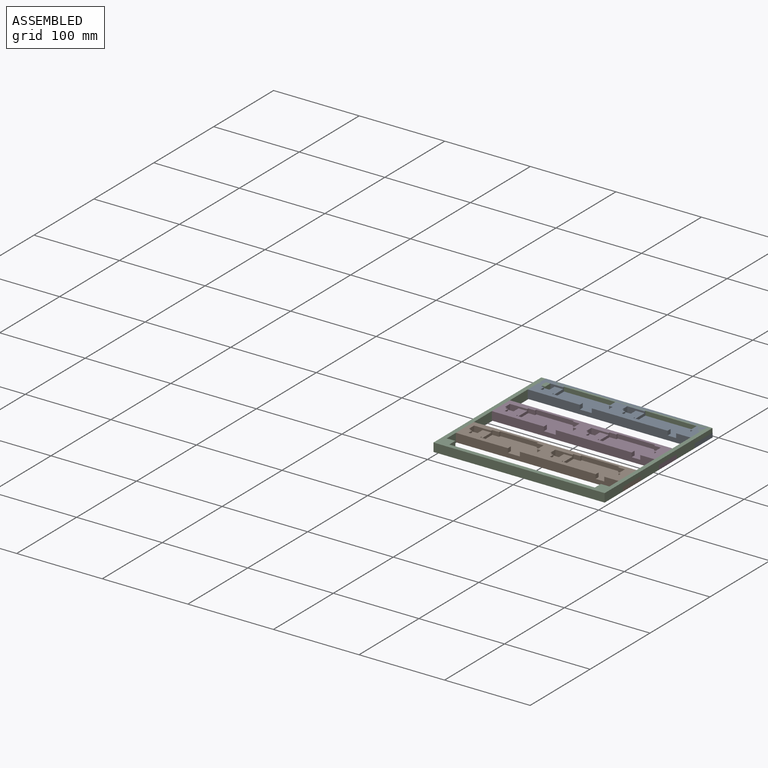
[diagram: assembled view]
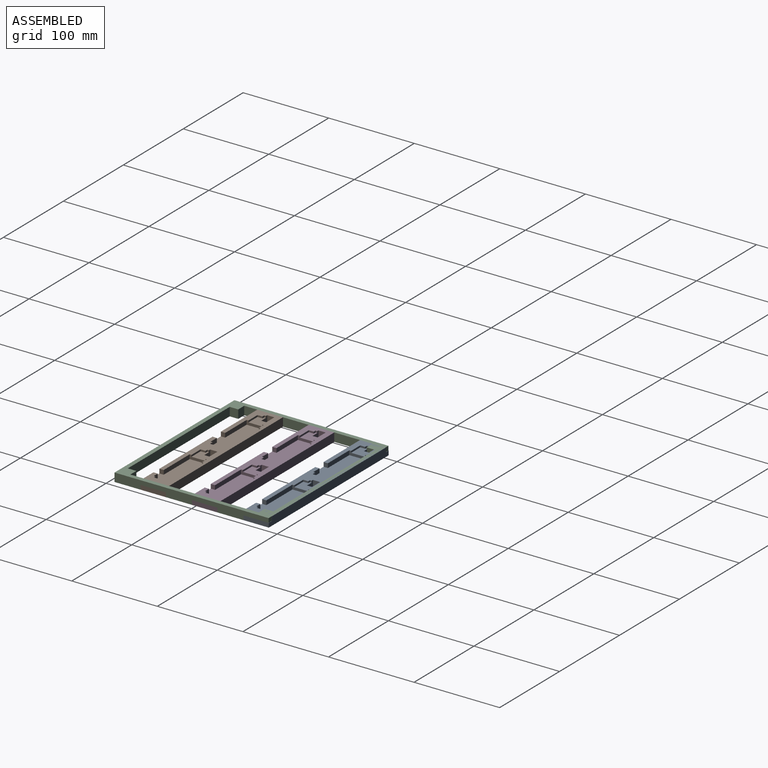
[diagram: assembled view, second angle]
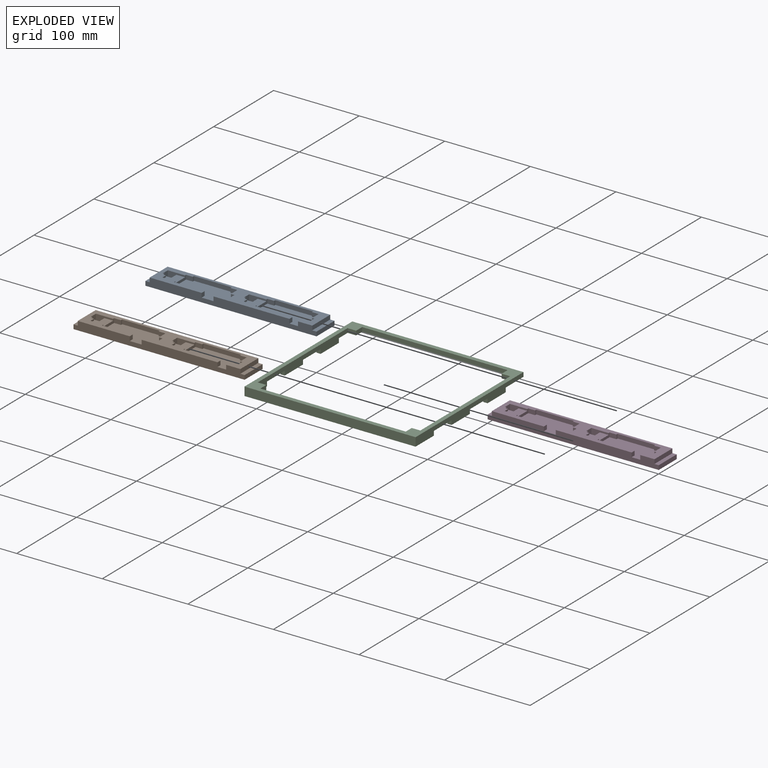
[diagram: exploded view]
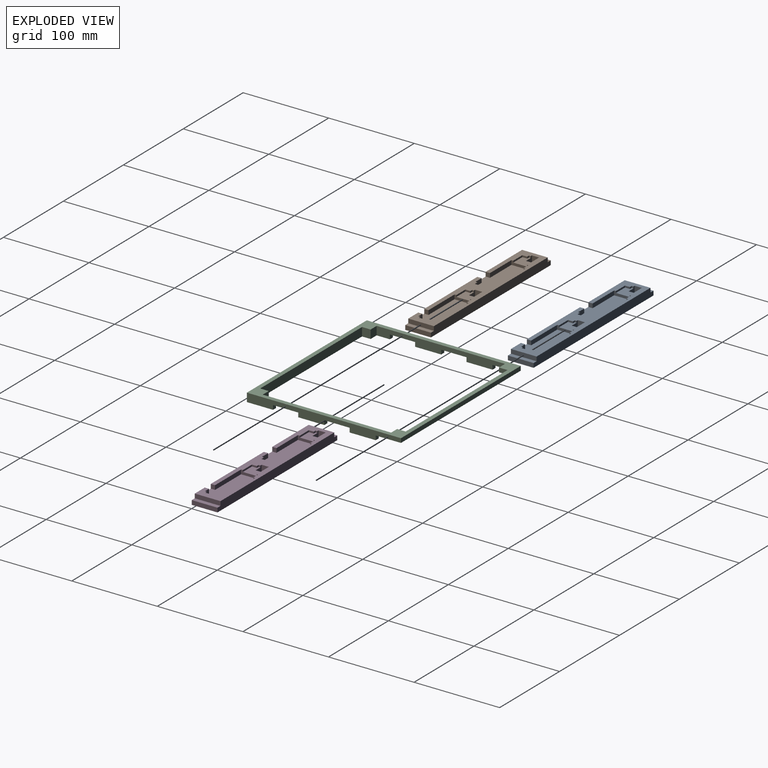
[diagram: exploded view, second angle]
ASSEMBLY  parts=4 mates=3
PART A: 60 faces, bbox 200x30x10 mm
  f0: plane 200x10mm, normal (0,-1,0), area 1830.4mm2, adj f1,f7,f8,f9,f44,f45,f52,f53
  f1: plane 190x30mm, normal (0,0,1), area 2371.7mm2, adj f0,f2,f3,f4,f5,f6,f12,f13
  f2: plane 200x10mm, normal (0,1,0), area 1950mm2, adj f1,f7,f44,f45,f56,f57,f58,f59
  f3: plane 35.76x5mm, normal (0,1,0), area 178.8mm2, adj f1,f8,f20,f55
  f4: plane 5x2.26mm, normal (-1,0,0), area 11.3mm2, adj f1,f8,f21,f49
  f5: plane 43.34x5mm, normal (0,1,0), area 216.7mm2, adj f1,f9,f32,f52
  f6: plane 5x2.19mm, normal (-1,0,0), area 10.9mm2, adj f1,f9,f33,f46
  f7: plane 30x5mm, normal (1,0,0), area 150mm2, adj f0,f2,f45,f59
  f8: plane 64.22x27mm, normal (0,0,1), area 1386.6mm2, adj f0,f3,f4,f12,f13,f14,f15,f20
  f9: plane 62.5x27mm, normal (0,0,1), area 1355.5mm2, adj f0,f5,f6,f24,f25,f26,f27,f32
  f10: plane 18.08x16.21mm, normal (0,0,1), area 209.5mm2, adj f28,f29,f30,f31,f32,f36,f37,f39
  f11: plane 18.08x16.21mm, normal (0,0,1), area 209.5mm2, adj f16,f17,f18,f19,f20,f40,f41,f43
  f12: plane 5x2mm, normal (-1,0,0), area 10mm2, adj f1,f8,f13,f23
  f13: plane 44x5mm, normal (0,-1,0), area 220mm2, adj f1,f8,f12,f14
  f14: plane 5x2mm, normal (1,0,0), area 10mm2, adj f1,f8,f13,f15
  f15: plane 8x5mm, normal (0,-1,0), area 40mm2, adj f1,f8,f14,f20
  f16: plane 2.06x2mm, normal (1,0,0), area 4.1mm2, adj f1,f11,f17,f41
  f17: plane 2.95x2mm, normal (0,1,0), area 5.9mm2, adj f1,f11,f16,f18
  f18: plane 5.78x2mm, normal (1,0,0), area 11.6mm2, adj f1,f11,f17,f19
  f19: plane 15.13x2mm, normal (0,1,0), area 30.3mm2, adj f1,f11,f18,f20
  f20: plane 20x5mm, normal (1,0,0), area 67.6mm2, adj f1,f3,f8,f11,f15,f19,f43
  f21: plane 10.32x5mm, normal (0,1,0), area 51.6mm2, adj f1,f4,f8,f54
  f22: plane 10.89x5mm, normal (-1,0,0), area 54.4mm2, adj f1,f8,f23,f51
  f23: plane 8x5mm, normal (0,-1,0), area 40mm2, adj f1,f8,f12,f22
  f24: plane 5x2mm, normal (-1,0,0), area 10mm2, adj f1,f9,f25,f35
  f25: plane 44x5mm, normal (0,-1,0), area 220mm2, adj f1,f9,f24,f26
  f26: plane 5x2mm, normal (1,0,0), area 10mm2, adj f1,f9,f25,f27
  f27: plane 8x5mm, normal (0,-1,0), area 40mm2, adj f1,f9,f26,f32
  f28: plane 2.06x2mm, normal (1,0,0), area 4.1mm2, adj f1,f10,f29,f37
  f29: plane 2.95x2mm, normal (0,1,0), area 5.9mm2, adj f1,f10,f28,f30
  f30: plane 5.78x2mm, normal (1,0,0), area 11.6mm2, adj f1,f10,f29,f31
  f31: plane 15.13x2mm, normal (0,1,0), area 30.3mm2, adj f1,f10,f30,f32
  f32: plane 20x5mm, normal (1,0,0), area 67.6mm2, adj f1,f5,f9,f10,f27,f31,f39
  f33: plane 6.66x5mm, normal (0,1,0), area 33.3mm2, adj f1,f6,f9,f53
  f34: plane 10.81x5mm, normal (-1,0,0), area 54.1mm2, adj f1,f9,f35,f48
  f35: plane 8x5mm, normal (0,-1,0), area 40mm2, adj f1,f9,f24,f34
  f36: plane 8.37x8mm, normal (-1,0,0), area 66.9mm2, adj f10,f37,f39,f45
  f37: plane 10x10mm, normal (0,1,0), area 84.1mm2, adj f1,f10,f28,f36,f38,f45
  f38: plane 10x8.37mm, normal (1,0,0), area 83.7mm2, adj f1,f37,f39,f45
  f39: plane 20.13x10mm, normal (0,-1,0), area 120.3mm2, adj f1,f10,f32,f36,f38,f45
  f40: plane 8.37x8mm, normal (-1,0,0), area 66.9mm2, adj f11,f41,f43,f45
  f41: plane 10x10mm, normal (0,1,0), area 84.1mm2, adj f1,f11,f16,f40,f42,f45
  f42: plane 10x8.37mm, normal (1,0,0), area 83.7mm2, adj f1,f41,f43,f45
  f43: plane 20.13x10mm, normal (0,-1,0), area 120.3mm2, adj f1,f11,f20,f40,f42,f45
  f44: plane 30x5mm, normal (-1,0,0), area 150mm2, adj f0,f2,f45,f57
  f45: plane 200x30mm, normal (0,0,-1), area 5832.7mm2, adj f0,f2,f7,f36,f37,f38,f39,f40
  f46: plane 5x2.5mm, normal (0,1,0), area 12.5mm2, adj f1,f6,f9,f47
  f47: plane 7x5mm, normal (-1,0,0), area 35mm2, adj f1,f9,f46,f48
  f48: plane 5x2.5mm, normal (0,-1,0), area 12.5mm2, adj f1,f9,f34,f47
  f49: plane 5x4.22mm, normal (0,1,0), area 21.1mm2, adj f1,f4,f8,f50
  f50: plane 6.85x5mm, normal (-1,0,0), area 34.3mm2, adj f1,f8,f49,f51
  f51: plane 5x4.22mm, normal (0,-1,0), area 21.1mm2, adj f1,f8,f22,f50
  f52: plane 5x5mm, normal (1,0,0), area 25mm2, adj f0,f1,f5,f9
  f53: plane 5x5mm, normal (-1,0,0), area 25mm2, adj f0,f1,f9,f33
  f54: plane 5x5mm, normal (-1,0,0), area 25mm2, adj f0,f1,f8,f21
  f55: plane 5x5mm, normal (1,0,0), area 25mm2, adj f0,f1,f3,f8
  f56: plane 30x5mm, normal (-1,0,0), area 150mm2, adj f0,f1,f2,f57
  f57: plane 30x5mm, normal (0,0,1), area 150mm2, adj f0,f2,f44,f56
  f58: plane 30x5mm, normal (1,0,0), area 150mm2, adj f0,f1,f2,f59
  f59: plane 30x5mm, normal (0,0,1), area 150mm2, adj f0,f2,f7,f58
PART B: same geometry as A
PART C: 37 faces, bbox 200x180x10 mm
  f0: plane 180x10mm, normal (-1,0,0), area 1357.5mm2, adj f4,f5,f6,f7,f20,f21,f29,f30
  f1: plane 150x10mm, normal (-1,0,0), area 1132.5mm2, adj f2,f3,f5,f17,f18,f21,f22,f23
  f2: plane 30.5x5mm, normal (0,0,-1), area 152.5mm2, adj f1,f8,f23,f26
  f3: plane 30.5x5mm, normal (0,0,-1), area 152.5mm2, adj f1,f8,f25,f27
  f4: plane 30.5x5mm, normal (0,0,-1), area 152.5mm2, adj f0,f12,f30,f31
  f5: plane 200x30.5mm, normal (0,0,-1), area 1455mm2, adj f0,f1,f7,f8,f9,f10,f11,f12
  f6: plane 30.5x5mm, normal (0,0,-1), area 152.5mm2, adj f0,f12,f32,f34
  f7: plane 200x10mm, normal (0,-1,0), area 2000mm2, adj f0,f5,f8,f21
  f8: plane 180x10mm, normal (1,0,0), area 1357.5mm2, adj f2,f3,f5,f7,f20,f21,f22,f23
  f9: plane 170x10mm, normal (0,1,0), area 1700mm2, adj f5,f10,f19,f21
  f10: plane 10x10mm, normal (1,0,0), area 100mm2, adj f5,f9,f11,f21
  f11: plane 10x10mm, normal (0,1,0), area 100mm2, adj f5,f10,f12,f21
  f12: plane 150x10mm, normal (1,0,0), area 1132.5mm2, adj f4,f5,f6,f11,f13,f21,f29,f30
  f13: plane 10x5mm, normal (0,-1,0), area 50mm2, adj f12,f14,f21,f29
  f14: plane 10x5mm, normal (1,0,0), area 50mm2, adj f13,f15,f21,f29
  f15: plane 170x5mm, normal (0,-1,0), area 850mm2, adj f14,f16,f21,f29
  f16: plane 10x5mm, normal (-1,0,0), area 50mm2, adj f15,f17,f21,f29
  f17: plane 10x5mm, normal (0,-1,0), area 50mm2, adj f1,f16,f21,f29
  f18: plane 10x10mm, normal (0,1,0), area 100mm2, adj f1,f5,f19,f21
  f19: plane 10x10mm, normal (-1,0,0), area 100mm2, adj f5,f9,f18,f21
  f20: plane 200x5mm, normal (0,1,0), area 1000mm2, adj f0,f8,f21,f29
  f21: plane 200x180mm, normal (0,0,1), area 4100mm2, adj f0,f1,f7,f8,f9,f10,f11,f12
  f22: plane 5x5mm, normal (0,1,0), area 25mm2, adj f1,f5,f8,f24
  f23: plane 5x5mm, normal (0,-1,0), area 25mm2, adj f1,f2,f8,f24
  f24: plane 29.5x5mm, normal (0,0,-1), area 147.5mm2, adj f1,f8,f22,f23
  f25: plane 5x5mm, normal (0,1,0), area 25mm2, adj f1,f3,f8,f29
  f26: plane 5x5mm, normal (0,1,0), area 25mm2, adj f1,f2,f8,f28
  f27: plane 5x5mm, normal (0,-1,0), area 25mm2, adj f1,f3,f8,f28
  f28: plane 29.5x5mm, normal (0,0,-1), area 147.5mm2, adj f1,f8,f26,f27
  f29: plane 200x29.5mm, normal (0,0,-1), area 1445mm2, adj f0,f1,f8,f12,f13,f14,f15,f16
  f30: plane 5x5mm, normal (0,1,0), area 25mm2, adj f0,f4,f12,f29
  f31: plane 5x5mm, normal (0,-1,0), area 25mm2, adj f0,f4,f12,f33
  f32: plane 5x5mm, normal (0,1,0), area 25mm2, adj f0,f6,f12,f33
  f33: plane 29.5x5mm, normal (0,0,-1), area 147.5mm2, adj f0,f12,f31,f32
  f34: plane 5x5mm, normal (0,-1,0), area 25mm2, adj f0,f6,f12,f36
  f35: plane 5x5mm, normal (0,1,0), area 25mm2, adj f0,f5,f12,f36
  f36: plane 29.5x5mm, normal (0,0,-1), area 147.5mm2, adj f0,f12,f34,f35
PART D: same geometry as A
PLACE A t=(0,75.25,0)mm
PLACE B t=(0,-44.75,0)mm
PLACE C at identity
PLACE D t=(0,15.25,0)mm
MATE parallel B.f7 <-> C.f8  axis (1,0,0) through (100,-44.75,2.5)mm
MATE parallel D.f7 <-> C.f8  axis (1,0,0) through (100,15.25,2.5)mm
MATE planar A.f7 <-> C.f8  axis (1,0,0) through (100,75.25,2.5)mm
